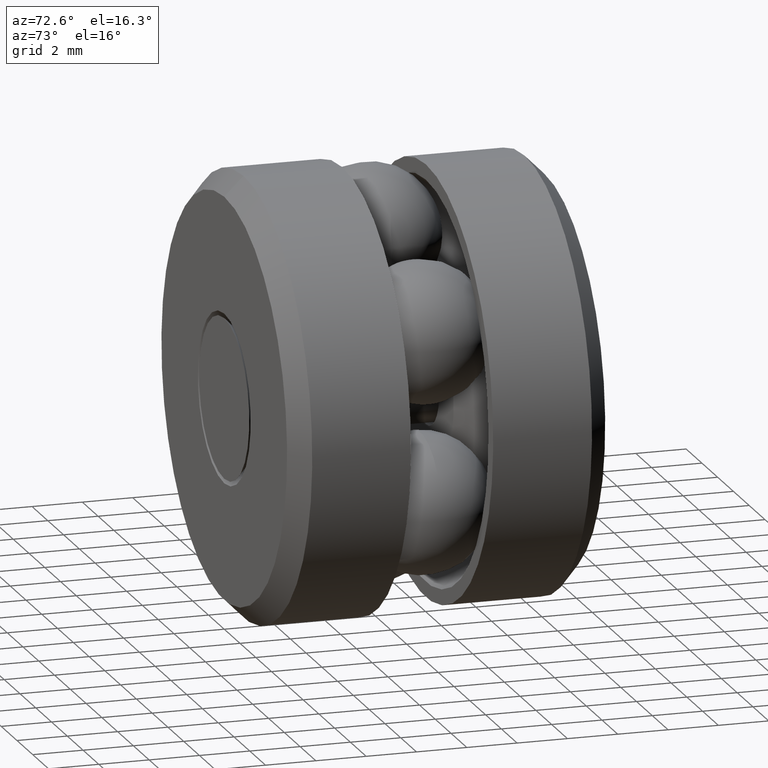
[diagram: clean part render]
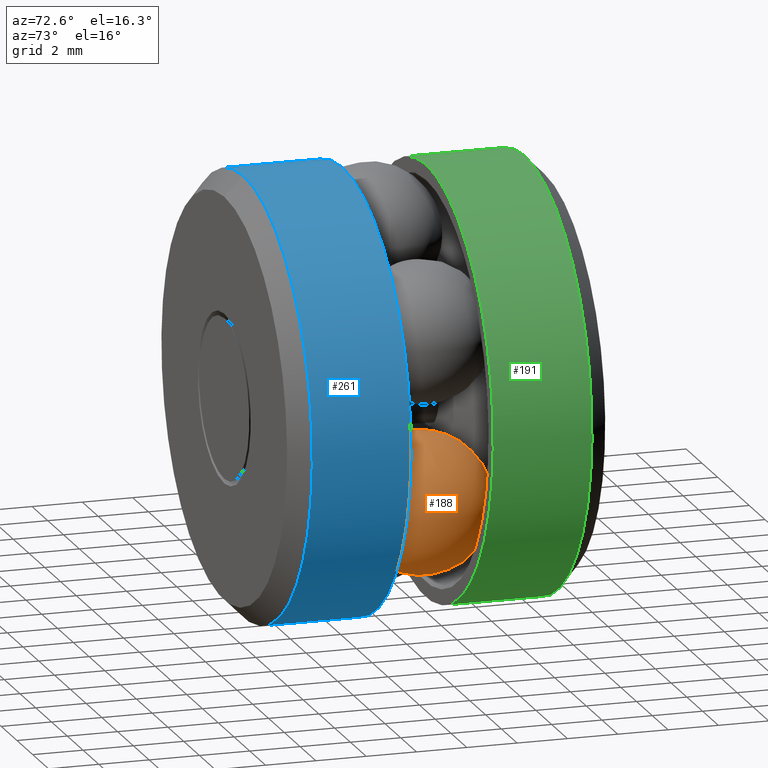
[diagram: same view with three faces highlighted in distinct colors, each labeled with its STEP entity id]
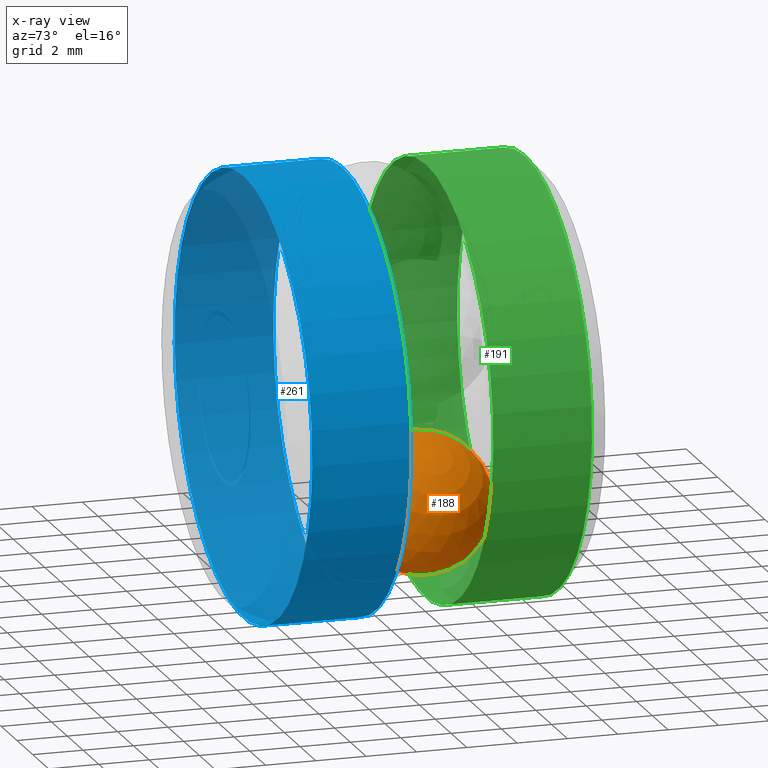
[diagram: x-ray of the same camera — body ghosted, the three highlighted faces saturated]
A machine part, auxiliary view with three faces highlighted in distinct colors.
The next image is the same camera in x-ray (body ghosted, the three faces saturated) — at least one of them is partly hidden behind the body in this view.
Their STEP definitions:

[orange] entity #188 — the highlighted spherical surface has radius 2.7686 mm.
#26 = DIRECTION ( 'NONE',  ( -0.8090169943749422300, 0.0000000000000000000, 0.5877852522924802400 ) ) ;
#44 = CARTESIAN_POINT ( 'NONE',  ( 0.1826355864801431900, 0.2500000000000000000, -0.1326925207050274100 ) ) ;
#82 = DIRECTION ( 'NONE',  ( 0.5877852522924802400, -0.0000000000000000000, 0.8090169943749422300 ) ) ;
#188 = ADVANCED_FACE ( 'NONE', ( ), #293, .T. ) ;
#293 = SPHERICAL_SURFACE ( 'NONE', #358, 0.1090000000000000400 ) ;
#358 = AXIS2_PLACEMENT_3D ( 'NONE', #44, #82, #26 ) ;

[blue] entity #261 — the highlighted cylindrical surface (bore or boss wall) has radius 8.7312 mm, axis along (-0, 1, -0).
#1 = AXIS2_PLACEMENT_3D ( 'NONE', #110, #106, #127 ) ;
#13 = CIRCLE ( 'NONE', #1, 0.3437500000000000000 ) ;
#14 = EDGE_CURVE ( 'NONE', #460, #460, #13, .T. ) ;
#36 = FACE_OUTER_BOUND ( 'NONE', #348, .T. ) ;
#42 = ORIENTED_EDGE ( 'NONE', *, *, #14, .T. ) ;
#73 = FACE_OUTER_BOUND ( 'NONE', #154, .T. ) ;
#85 = AXIS2_PLACEMENT_3D ( 'NONE', #132, #190, #463 ) ;
#106 = DIRECTION ( 'NONE',  ( -0.0000000000000000000, 1.000000000000000000, -0.0000000000000000000 ) ) ;
#110 = CARTESIAN_POINT ( 'NONE',  ( 0.0000000000000000000, 0.03000000000000024200, 0.0000000000000000000 ) ) ;
#127 = DIRECTION ( 'NONE',  ( 0.0000000000000000000, 0.0000000000000000000, 1.000000000000000000 ) ) ;
#129 = AXIS2_PLACEMENT_3D ( 'NONE', #142, #140, #134 ) ;
#132 = CARTESIAN_POINT ( 'NONE',  ( 0.0000000000000000000, 0.0000000000000000000, 0.0000000000000000000 ) ) ;
#134 = DIRECTION ( 'NONE',  ( 0.0000000000000000000, 0.0000000000000000000, 1.000000000000000000 ) ) ;
#140 = DIRECTION ( 'NONE',  ( -0.0000000000000000000, 1.000000000000000000, -0.0000000000000000000 ) ) ;
#142 = CARTESIAN_POINT ( 'NONE',  ( 0.0000000000000000000, 0.1845999999999999600, 0.0000000000000000000 ) ) ;
#145 = EDGE_CURVE ( 'NONE', #337, #337, #328, .T. ) ;
#154 = EDGE_LOOP ( 'NONE', ( #42 ) ) ;
#190 = DIRECTION ( 'NONE',  ( -0.0000000000000000000, 1.000000000000000000, -0.0000000000000000000 ) ) ;
#261 = ADVANCED_FACE ( 'NONE', ( #73, #36 ), #353, .T. ) ;
#328 = CIRCLE ( 'NONE', #129, 0.3437500000000000000 ) ;
#337 = VERTEX_POINT ( 'NONE', #401 ) ;
#345 = ORIENTED_EDGE ( 'NONE', *, *, #145, .F. ) ;
#348 = EDGE_LOOP ( 'NONE', ( #345 ) ) ;
#353 = CYLINDRICAL_SURFACE ( 'NONE', #85, 0.3437500000000000000 ) ;
#401 = CARTESIAN_POINT ( 'NONE',  ( 0.0000000000000000000, 0.1845999999999999600, 0.3437500000000000000 ) ) ;
#460 = VERTEX_POINT ( 'NONE', #483 ) ;
#463 = DIRECTION ( 'NONE',  ( 0.0000000000000000000, 0.0000000000000000000, 1.000000000000000000 ) ) ;
#483 = CARTESIAN_POINT ( 'NONE',  ( 0.0000000000000000000, 0.03000000000000024200, 0.3437500000000000000 ) ) ;

[green] entity #191 — the highlighted cylindrical surface (bore or boss wall) has radius 8.5535 mm, axis along (-0, 1, -0).
#3 = CARTESIAN_POINT ( 'NONE',  ( 0.0000000000000000000, 0.0000000000000000000, 0.0000000000000000000 ) ) ;
#5 = EDGE_LOOP ( 'NONE', ( #374 ) ) ;
#28 = DIRECTION ( 'NONE',  ( -0.0000000000000000000, 1.000000000000000000, -0.0000000000000000000 ) ) ;
#43 = AXIS2_PLACEMENT_3D ( 'NONE', #438, #375, #368 ) ;
#67 = DIRECTION ( 'NONE',  ( 0.0000000000000000000, 0.0000000000000000000, 1.000000000000000000 ) ) ;
#70 = DIRECTION ( 'NONE',  ( -0.0000000000000000000, 1.000000000000000000, -0.0000000000000000000 ) ) ;
#71 = EDGE_LOOP ( 'NONE', ( #76 ) ) ;
#72 = CARTESIAN_POINT ( 'NONE',  ( 0.0000000000000000000, 0.4699999999999996400, 0.0000000000000000000 ) ) ;
#76 = ORIENTED_EDGE ( 'NONE', *, *, #273, .T. ) ;
#178 = EDGE_CURVE ( 'NONE', #535, #535, #301, .T. ) ;
#191 = ADVANCED_FACE ( 'NONE', ( #212, #311 ), #493, .T. ) ;
#212 = FACE_OUTER_BOUND ( 'NONE', #71, .T. ) ;
#265 = AXIS2_PLACEMENT_3D ( 'NONE', #72, #70, #67 ) ;
#273 = EDGE_CURVE ( 'NONE', #524, #524, #466, .T. ) ;
#301 = CIRCLE ( 'NONE', #265, 0.3367500000000000500 ) ;
#311 = FACE_OUTER_BOUND ( 'NONE', #5, .T. ) ;
#368 = DIRECTION ( 'NONE',  ( 0.0000000000000000000, 0.0000000000000000000, 1.000000000000000000 ) ) ;
#374 = ORIENTED_EDGE ( 'NONE', *, *, #178, .F. ) ;
#375 = DIRECTION ( 'NONE',  ( -0.0000000000000000000, 1.000000000000000000, -0.0000000000000000000 ) ) ;
#376 = CARTESIAN_POINT ( 'NONE',  ( 0.0000000000000000000, 0.4699999999999996400, 0.3367500000000000500 ) ) ;
#420 = AXIS2_PLACEMENT_3D ( 'NONE', #3, #28, #489 ) ;
#438 = CARTESIAN_POINT ( 'NONE',  ( 0.0000000000000000000, 0.3154000000000000100, 0.0000000000000000000 ) ) ;
#466 = CIRCLE ( 'NONE', #43, 0.3367499999999999900 ) ;
#489 = DIRECTION ( 'NONE',  ( 0.0000000000000000000, 0.0000000000000000000, 1.000000000000000000 ) ) ;
#493 = CYLINDRICAL_SURFACE ( 'NONE', #420, 0.3367500000000000500 ) ;
#504 = CARTESIAN_POINT ( 'NONE',  ( 0.0000000000000000000, 0.3154000000000000100, 0.3367499999999999900 ) ) ;
#524 = VERTEX_POINT ( 'NONE', #504 ) ;
#535 = VERTEX_POINT ( 'NONE', #376 ) ;